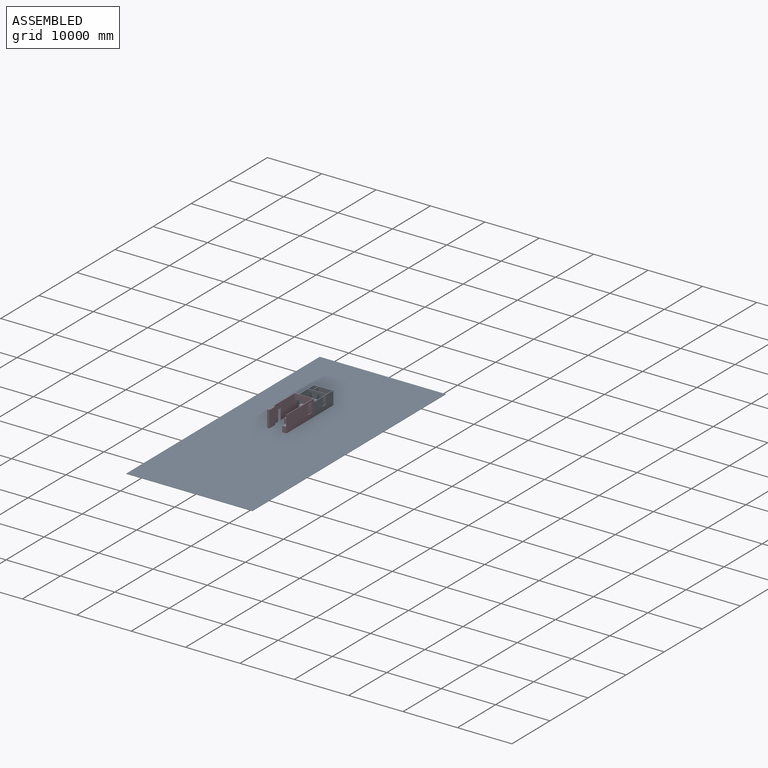
[diagram: assembled view]
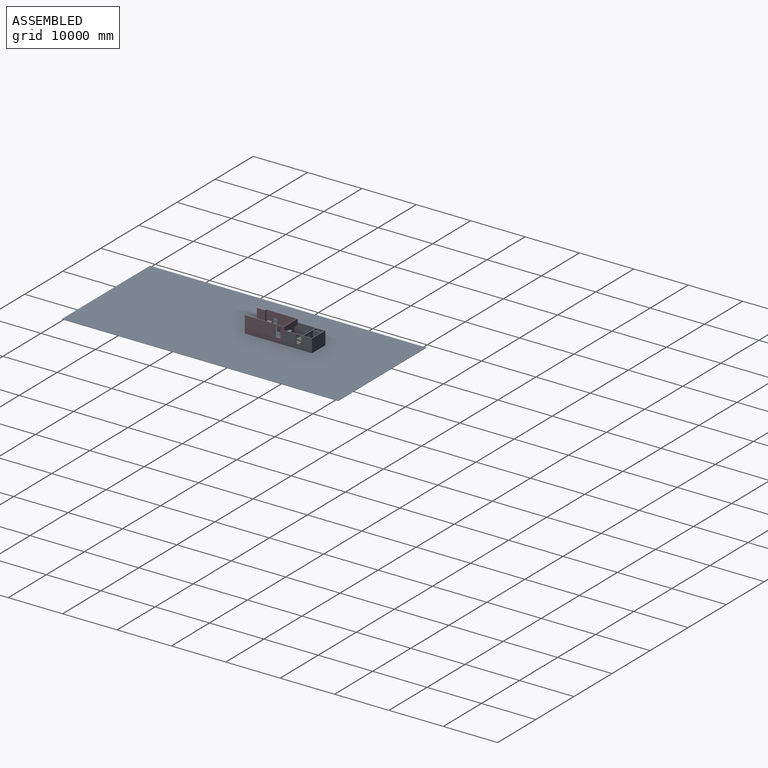
[diagram: assembled view, second angle]
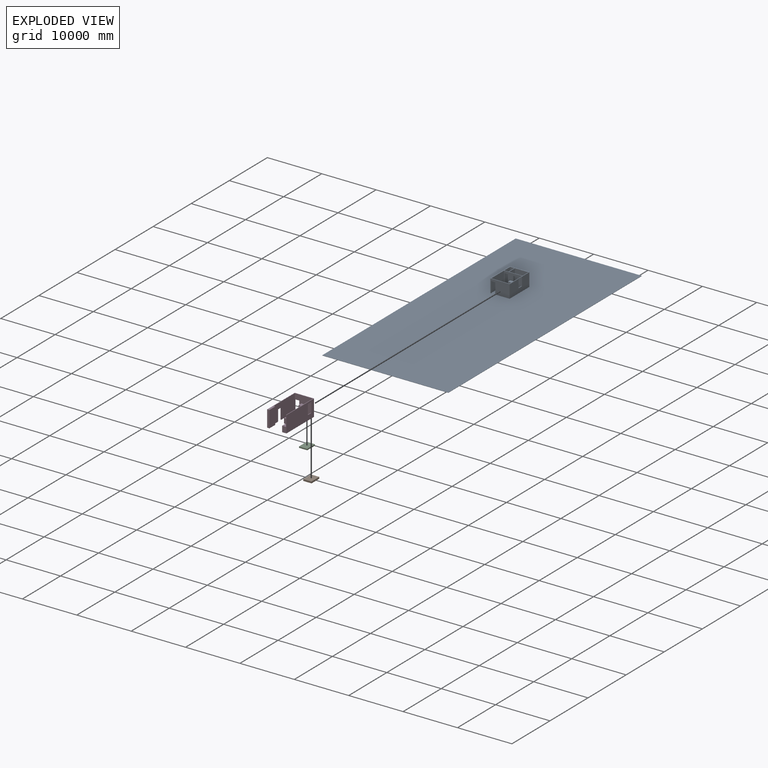
[diagram: exploded view]
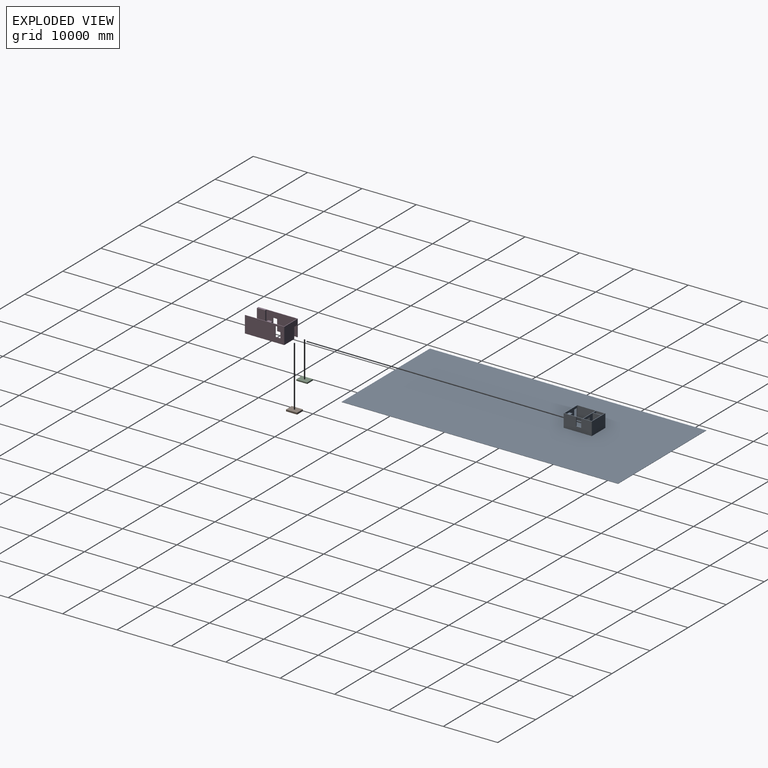
[diagram: exploded view, second angle]
ASSEMBLY  parts=4 mates=6
PART A: 63 faces, bbox 23182.1x50814.8x2489.2 mm
  f0: plane 50814.82x23182.13mm, normal (0,0,1), area 1174138335.4mm2, adj f1,f3,f5,f6,f7,f8,f9,f10
  f1: plane 762x91.91mm, normal (-1,0,0), area 70034mm2, adj f0,f42,f44,f61
  f2: plane 1524x762mm, normal (0,0,1), area 157522.3mm2, adj f3,f4,f5,f45,f51,f52,f53,f54
  f3: plane 2489.2x2438.4mm, normal (0,1,0), area 4230959.3mm2, adj f0,f2,f4,f13,f20,f35,f36,f37
  f4: plane 2057.4x1524mm, normal (1,0,0), area 3135477.6mm2, adj f2,f3,f5,f20
  f5: plane 2489.2x2438.4mm, normal (0,-1,0), area 4705722.9mm2, adj f0,f2,f4,f13,f20,f43,f44,f45
  f6: plane 2438.4x457.2mm, normal (-1,0,0), area 1114836.5mm2, adj f0,f7,f20,f32
  f7: plane 3352.8x2438.4mm, normal (0,1,0), area 6627083.5mm2, adj f0,f6,f8,f20,f21,f22,f23
  f8: plane 3352.8x2438.4mm, normal (1,0,0), area 8175467.5mm2, adj f0,f7,f9,f20
  f9: plane 3352.8x2438.4mm, normal (0,-1,0), area 5388376.3mm2, adj f0,f8,f19,f20,f29,f30,f31,f35
  f10: plane 5181.6x2438.4mm, normal (-1,0,0), area 12634813.4mm2, adj f0,f11,f17,f20
  f11: plane 3556x2438.4mm, normal (0,-1,0), area 7122566.4mm2, adj f0,f10,f12,f20,f21,f22,f23
  f12: plane 5181.6x2438.4mm, normal (1,0,0), area 11241267.8mm2, adj f0,f11,f17,f20,f38,f39,f40,f41
  f13: plane 2438.4x1524mm, normal (-1,0,0), area 3716121.6mm2, adj f0,f3,f5,f20
  f14: plane 2438.4x762mm, normal (0,1,0), area 619353.6mm2, adj f0,f15,f18,f20,f29,f30,f31
  f15: plane 2438.4x1524mm, normal (1,0,0), area 3716121.6mm2, adj f0,f14,f16,f20
  f16: plane 2438.4x762mm, normal (0,-1,0), area 1858060.8mm2, adj f0,f15,f18,f20
  f17: plane 3556x2438.4mm, normal (0,1,0), area 8670950.4mm2, adj f0,f10,f12,f20
  f18: plane 2438.4x1524mm, normal (-1,0,0), area 3716121.6mm2, adj f0,f14,f16,f20
  f19: plane 2438.4x2286mm, normal (-1,0,0), area 4180636.8mm2, adj f0,f9,f20,f33,f38,f39,f40,f41
  f20: plane 5181.6x3556mm, normal (0,0,1), area 2601285.1mm2, adj f3,f4,f5,f6,f7,f8,f9,f10
  f21: plane 2032x101.6mm, normal (-1,0,0), area 206451.2mm2, adj f0,f7,f11,f23
  f22: plane 2032x101.6mm, normal (1,0,0), area 206451.2mm2, adj f0,f7,f11,f23
  f23: plane 762x101.6mm, normal (0,0,-1), area 77419.2mm2, adj f7,f11,f21,f22
  f24: plane 50814.82x23182.13mm, normal (0,0,-1), area 1177995899.6mm2, adj f25,f26,f27,f28
  f25: plane 23182.13x50.8mm, normal (0,1,0), area 1177652.2mm2, adj f0,f24,f26,f28
  f26: plane 50814.82x50.8mm, normal (1,0,0), area 2581393.1mm2, adj f0,f24,f25,f27
  f27: plane 23182.13x50.8mm, normal (0,-1,0), area 1177652.2mm2, adj f0,f24,f26,f28
  f28: plane 50814.82x50.8mm, normal (-1,0,0), area 2581393.1mm2, adj f0,f24,f25,f27
  f29: plane 2032x101.6mm, normal (-1,0,0), area 206451.2mm2, adj f0,f9,f14,f31
  f30: plane 2032x101.6mm, normal (1,0,0), area 206451.2mm2, adj f0,f9,f14,f31
  f31: plane 609.6x101.6mm, normal (0,0,-1), area 61935.4mm2, adj f9,f14,f29,f30
  f32: plane 2438.4x609.6mm, normal (0,-1,0), area 1486448.6mm2, adj f0,f6,f20,f34
  f33: plane 2438.4x609.6mm, normal (0,1,0), area 1486448.6mm2, adj f0,f19,f20,f34
  f34: plane 2438.4x609.6mm, normal (-1,0,0), area 1486448.6mm2, adj f0,f20,f32,f33
  f35: plane 2032x101.6mm, normal (1,0,0), area 206451.2mm2, adj f0,f3,f9,f37
  f36: plane 2032x101.6mm, normal (-1,0,0), area 206451.2mm2, adj f0,f3,f9,f37
  f37: plane 762x101.6mm, normal (0,0,-1), area 77419.2mm2, adj f3,f9,f35,f36
  f38: plane 1524x101.6mm, normal (0,1,0), area 154838.4mm2, adj f12,f19,f39,f40
  f39: plane 914.4x101.6mm, normal (0,0,1), area 92903mm2, adj f12,f19,f38,f41
  f40: plane 914.4x101.6mm, normal (0,0,-1), area 92903mm2, adj f12,f19,f38,f41
  f41: plane 1524x101.6mm, normal (0,-1,0), area 154838.4mm2, adj f12,f19,f39,f40
  f42: plane 762x457.2mm, normal (0,-1,0), area 348386.4mm2, adj f0,f1,f43,f44
  f43: plane 762x381mm, normal (1,0,0), area 290322mm2, adj f0,f5,f42,f44
  f44: plane 457.2x381mm, normal (0,0,1), area 174193.2mm2, adj f1,f5,f42,f43,f59
  f45: plane 1524x381mm, normal (1,0,0), area 580644mm2, adj f0,f2,f3,f5
  f46: plane 660.4x299.72mm, normal (0,1,0), area 197935.1mm2, adj f47,f49,f51,f55
  f47: plane 1422.4x299.72mm, normal (-1,0,0), area 426321.7mm2, adj f46,f48,f52,f56
  f48: plane 660.4x299.72mm, normal (0,-1,0), area 197935.1mm2, adj f47,f49,f54,f58
  f49: plane 1422.4x299.72mm, normal (1,0,0), area 426321.7mm2, adj f46,f48,f53,f57
  f50: plane 1391.92x629.92mm, normal (0,0,1), area 876798.2mm2, adj f55,f56,f57,f58
  f51: cylinder r=15.24mm len=690.88mm, axis (-1,0,0), area 16074.4mm2, adj f2,f46,f52,f53
  f52: cylinder r=15.24mm len=1452.88mm, axis (0,-1,0), area 34315.9mm2, adj f2,f47,f51,f54
  f53: cylinder r=15.24mm len=1452.88mm, axis (0,1,0), area 34315.9mm2, adj f2,f49,f51,f54
  f54: cylinder r=15.24mm len=690.88mm, axis (1,0,0), area 16074.4mm2, adj f2,f48,f52,f53
  f55: cylinder r=15.24mm len=660.4mm, axis (1,0,0), area 15544.1mm2, adj f46,f50,f56,f57
  f56: cylinder r=15.24mm len=1422.4mm, axis (0,1,0), area 33785.6mm2, adj f47,f50,f55,f58
  f57: cylinder r=15.24mm len=1422.4mm, axis (0,-1,0), area 33785.6mm2, adj f49,f50,f55,f58
  f58: cylinder r=15.24mm len=660.4mm, axis (-1,0,0), area 15544.1mm2, adj f48,f50,f56,f57
  f59: plane 762x289.09mm, normal (1,0,0), area 220288mm2, adj f5,f44,f61,f62
  f60: plane 1524x289.09mm, normal (-1,0,0), area 440575.9mm2, adj f0,f5,f61,f62
  f61: plane 1524x475.88mm, normal (0,-1,0), area 725234mm2, adj f0,f1,f59,f60,f62
  f62: plane 475.88x289.09mm, normal (0,0,1), area 137571.7mm2, adj f5,f59,f60,f61
PART B: 6 faces, bbox 2032x1524x304.8 mm
  f0: plane 1524x304.8mm, normal (-1,0,0), area 464515.2mm2, adj f1,f3,f4,f5
  f1: plane 2032x304.8mm, normal (0,-1,0), area 619353.6mm2, adj f0,f2,f4,f5
  f2: plane 1524x304.8mm, normal (1,0,0), area 464515.2mm2, adj f1,f3,f4,f5
  f3: plane 2032x304.8mm, normal (0,1,0), area 619353.6mm2, adj f0,f2,f4,f5
  f4: plane 2032x1524mm, normal (0,0,1), area 3096768mm2, adj f0,f1,f2,f3
  f5: plane 2032x1524mm, normal (0,0,-1), area 3096768mm2, adj f0,f1,f2,f3
PART C: 18 faces, bbox 2032x1524x254 mm
  f0: plane 1473.2x203.2mm, normal (-1,0,0), area 299354.2mm2, adj f6,f10,f14,f15
  f1: plane 1981.2x203.2mm, normal (0,-1,0), area 402579.8mm2, adj f7,f11,f15,f16
  f2: plane 1473.2x203.2mm, normal (1,0,0), area 299354.2mm2, adj f9,f13,f16,f17
  f3: plane 1981.2x203.2mm, normal (0,1,0), area 402579.8mm2, adj f8,f12,f14,f17
  f4: plane 1981.2x1473.2mm, normal (0,0,1), area 2918703.8mm2, adj f10,f11,f12,f13
  f5: plane 1981.2x1473.2mm, normal (0,0,-1), area 2918703.8mm2, adj f6,f7,f8,f9
  f6: cylinder r=25.4mm len=1509.12mm, axis (0,-1,0), area 59533.9mm2, adj f0,f5,f7,f8,f14,f15
  f7: cylinder r=25.4mm len=2017.12mm, axis (1,0,0), area 79802.2mm2, adj f1,f5,f6,f9,f15,f16
  f8: cylinder r=25.4mm len=2017.12mm, axis (-1,0,0), area 79802.2mm2, adj f3,f5,f6,f9,f14,f17
  f9: cylinder r=25.4mm len=1509.12mm, axis (0,1,0), area 59533.9mm2, adj f2,f5,f7,f8,f16,f17
  f10: cylinder r=25.4mm len=1509.12mm, axis (0,1,0), area 59533.9mm2, adj f0,f4,f11,f12,f14,f15
  f11: cylinder r=25.4mm len=2017.12mm, axis (-1,0,0), area 79802.2mm2, adj f1,f4,f10,f13,f15,f16
  f12: cylinder r=25.4mm len=2017.12mm, axis (1,0,0), area 79802.2mm2, adj f3,f4,f10,f13,f14,f17
  f13: cylinder r=25.4mm len=1509.12mm, axis (0,-1,0), area 59533.9mm2, adj f2,f4,f11,f12,f16,f17
  f14: cylinder r=25.4mm len=239.12mm, axis (0,0,-1), area 8863.2mm2, adj f0,f3,f6,f8,f10,f12
  f15: cylinder r=25.4mm len=239.12mm, axis (0,0,1), area 8863.2mm2, adj f0,f1,f6,f7,f10,f11
  f16: cylinder r=25.4mm len=239.12mm, axis (0,0,-1), area 8863.2mm2, adj f1,f2,f7,f9,f11,f13
  f17: cylinder r=25.4mm len=239.12mm, axis (0,0,1), area 8863.2mm2, adj f2,f3,f8,f9,f12,f13
PART D: 35 faces, bbox 7231.2x3556x3048 mm
  f0: plane 2743.2x406.4mm, normal (0,0,-1), area 743224.3mm2, adj f1,f9,f10,f18,f19,f28
  f1: plane 5605.64x3048mm, normal (0,-1,0), area 15537616.2mm2, adj f0,f11,f13,f14,f18,f28,f29,f30
  f2: plane 3929.24x457.2mm, normal (0,1,0), area 1796450mm2, adj f3,f7,f23,f25
  f3: plane 1981.2x457.2mm, normal (-1,0,0), area 580644mm2, adj f2,f4,f13,f21,f23,f25,f26,f27
  f4: plane 3929.24x609.6mm, normal (0,1,0), area 2395266.6mm2, adj f3,f7,f13,f26
  f5: plane 7231.24x2641.6mm, normal (0,0,-1), area 4135622.4mm2, adj f6,f7,f8,f11,f12,f16,f20,f21
  f6: plane 3556x3048mm, normal (1,0,0), area 9290304mm2, adj f5,f8,f9,f13,f14,f15,f16,f17
  f7: plane 3048x812.8mm, normal (-1,0,0), area 1393545.6mm2, adj f2,f4,f5,f8,f13,f23,f24,f25
  f8: plane 7231.24x3048mm, normal (0,-1,0), area 20368574.3mm2, adj f5,f6,f7,f13,f31,f32,f33,f34
  f9: plane 7231.24x3048mm, normal (0,1,0), area 20492445mm2, adj f0,f6,f10,f13,f14,f28,f29,f30
  f10: plane 3048x406.4mm, normal (-1,0,0), area 1238707.2mm2, adj f0,f9,f13,f19
  f11: plane 3352.8x3048mm, normal (-1,0,0), area 8670950.4mm2, adj f1,f5,f12,f13,f14,f15,f16,f17
  f12: plane 3048x2438.4mm, normal (0,1,0), area 5759988.5mm2, adj f5,f11,f13,f20,f31,f32,f33,f34
  f13: plane 7231.24x3556mm, normal (0,0,1), area 2622934.7mm2, adj f1,f3,f4,f6,f7,f8,f9,f10
  f14: plane 3726.04x152.4mm, normal (0,0,-1), area 383727.3mm2, adj f1,f6,f9,f11,f17,f30
  f15: plane 762x101.6mm, normal (0,0,-1), area 77419.2mm2, adj f6,f11,f16,f17
  f16: plane 2032x101.6mm, normal (0,1,0), area 206451.2mm2, adj f5,f6,f11,f15
  f17: plane 2032x101.6mm, normal (0,-1,0), area 206451.2mm2, adj f6,f11,f14,f15
  f18: plane 3048x304.8mm, normal (1,0,0), area 929030.4mm2, adj f0,f1,f13,f19
  f19: plane 3048x1524mm, normal (0,-1,0), area 4645152mm2, adj f0,f10,f13,f18
  f20: plane 3048x457.2mm, normal (1,0,0), area 1393545.6mm2, adj f5,f12,f13,f21
  f21: plane 3048x762mm, normal (0,1,0), area 2322576mm2, adj f3,f5,f13,f20,f22
  f22: plane 1066.8x254mm, normal (1,0,0), area 270967.2mm2, adj f5,f21,f23,f24
  f23: plane 3929.24x711.2mm, normal (0,0,1), area 2794477.7mm2, adj f2,f3,f7,f22,f24
  f24: plane 3929.24x1066.8mm, normal (0,1,0), area 4191716.6mm2, adj f5,f7,f22,f23
  f25: plane 3929.24x355.6mm, normal (0,0,-1), area 1397238.9mm2, adj f2,f3,f7,f27
  f26: plane 3929.24x355.6mm, normal (0,0,1), area 1397238.9mm2, adj f3,f4,f7,f27
  f27: plane 3929.24x914.4mm, normal (0,1,0), area 3592899.9mm2, adj f3,f7,f25,f26
  f28: plane 2032x101.6mm, normal (1,0,0), area 206451.2mm2, adj f0,f1,f9,f29
  f29: plane 762x101.6mm, normal (0,0,-1), area 77419.2mm2, adj f1,f9,f28,f30
  f30: plane 2032x101.6mm, normal (-1,0,0), area 206451.2mm2, adj f1,f9,f14,f29
  f31: plane 1828.8x101.6mm, normal (-1,0,0), area 185806.1mm2, adj f8,f12,f32,f33
  f32: plane 914.4x101.6mm, normal (0,0,-1), area 92903mm2, adj f8,f12,f31,f34
  f33: plane 914.4x101.6mm, normal (0,0,1), area 92903mm2, adj f8,f12,f31,f34
  f34: plane 1828.8x101.6mm, normal (1,0,0), area 185806.1mm2, adj f8,f12,f32,f33
PLACE A t=(1711.94,9399.92,0)mm
PLACE B rot(axis=(0,0,-1),90deg) t=(2321.02,8667.87,0)mm
PLACE C rot(axis=(0,0,1),90deg) t=(935.21,9131.12,304.8)mm
PLACE D rot(axis=(0,0,1),90deg) t=(1940.08,3274.75,0)mm
MATE planar D.f5 <-> A.f0  axis (0,0,-1) through (3124.64,2780.99,0)mm
MATE planar C.f5 <-> B.f4  axis (0,0,-1) through (924.99,9124.42,304.8)mm
MATE planar D.f6 <-> A.f7  axis (0,1,0) through (1985.43,7231.24,1608.67)mm
MATE planar D.f9 <-> A.f10  axis (-1,0,0) through (0,3652.75,1562.38)mm
MATE planar B.f5 <-> A.f0  axis (0,0,-1) through (2328.94,8247.24,0)mm
MATE planar B.f2 <-> A.f7  axis (0,-1,0) through (2328.94,7231.24,152.4)mm
